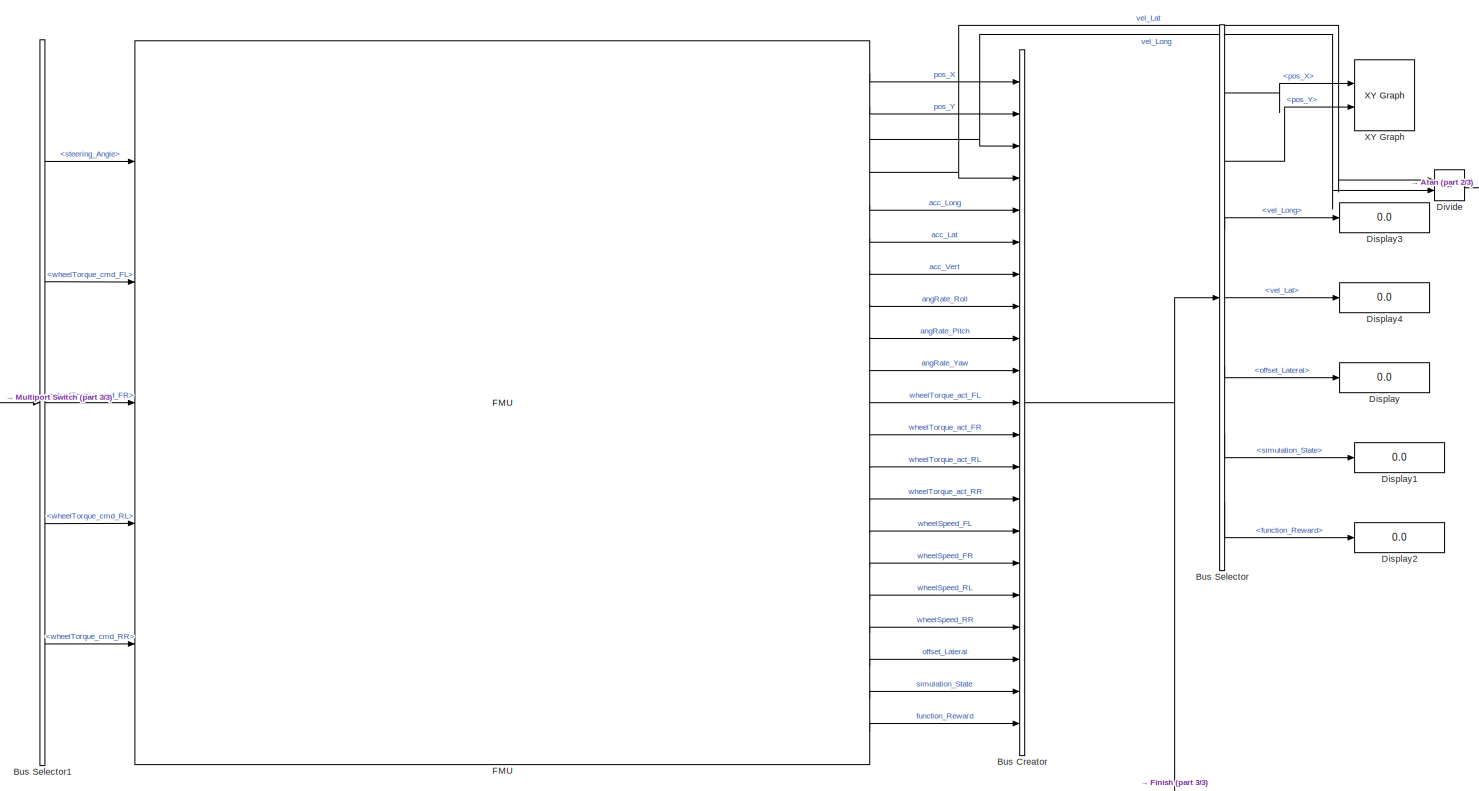
[diagram: root canvas - part 1/3, most of the canvas]
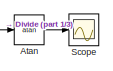
[diagram: root canvas - part 2/3, top right region]
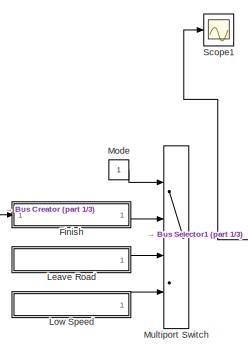
[diagram: root canvas - part 3/3, middle left region]
MODEL slx_ea563515ab96
KIND model
CONFIG AbsTol = auto
CONFIG EnableMultiTasking = off
CONFIG FixedStep = 0.01
CONFIG MaxStep = auto
CONFIG MinStep = auto
CONFIG RelTol = 1e-3
CONFIG SampleTimeConstraint = Unconstrained
CONFIG Solver = ode3
CONFIG SolverName = ode3
CONFIG StartTime = 0.0
CONFIG StopTime = 25
BLOCK [Trigonometry] Atan
  Operator = atan
  Ports = [1, 1]
BLOCK [BusCreator] Bus Creator
  DisplayOption = bar
  InheritFromInputs = on
  Inputs = 21
  Ports = [21, 1]
BLOCK [BusSelector] Bus Selector
  OutputAsBus = off
  OutputSignals = pos_X,pos_Y,vel_Long,vel_Lat,offset_Lateral,simulation_State,function_Reward
  Ports = [1, 7]
BLOCK [BusSelector] Bus Selector1
  OutputAsBus = off
  OutputSignals = steering_Angle,wheelTorque_cmd_FL,wheelTorque_cmd_FR,wheelTorque_cmd_RL,wheelTorque_cmd_RR
  Ports = [1, 5]
BLOCK [Display] Display
  Decimation = 1
  Ports = [1]
BLOCK [Display] Display1
  Decimation = 1
  Ports = [1]
BLOCK [Display] Display2
  Decimation = 1
  Ports = [1]
BLOCK [Display] Display3
  Decimation = 1
  Ports = [1]
BLOCK [Display] Display4
  Decimation = 1
  Ports = [1]
BLOCK [Product] Divide
  InputSameDT = off
  Inputs = */
  OutDataTypeStr = Inherit: Inherit via internal rule
  Ports = [2, 1]
  RndMeth = Floor
  SaturateOnIntegerOverflow = off
BLOCK [FMU] FMU
  FMUDebugLogging = on
  FMUMode = CoSimulation
  FMUName = MED2018_VehicleModel.fmu
  FMUSampleTime = -1
  MaskDisplay = if (exist([Simulink.fileGenControl('get','CacheFolder') '\slprj\_fmu\87fe7205f2c752a272fe911956c5d5a6\MED2018_VehicleModel\model.png'],'file'))\n    image([Simulink.fileGenControl('get','CacheFolder') '\slprj\_fmu\87fe7205f2c752a272fe911956c5d5a6\MED2018_VehicleModel\model.png']);\n    text(0.03, 0.97, 'MED2018.VehicleModel', 'horizontalAlignment', 'left', 'verticalAlignment', 'top');\nelse\n    disp(...<+1077ch>
  MaskPromptString = Communication StepsizeCommunication stepsize between FMU and Simulink
  MaskType = MED2018.VehicleModel [Co-Simulation, v2.0]
  Ports = [5, 21]
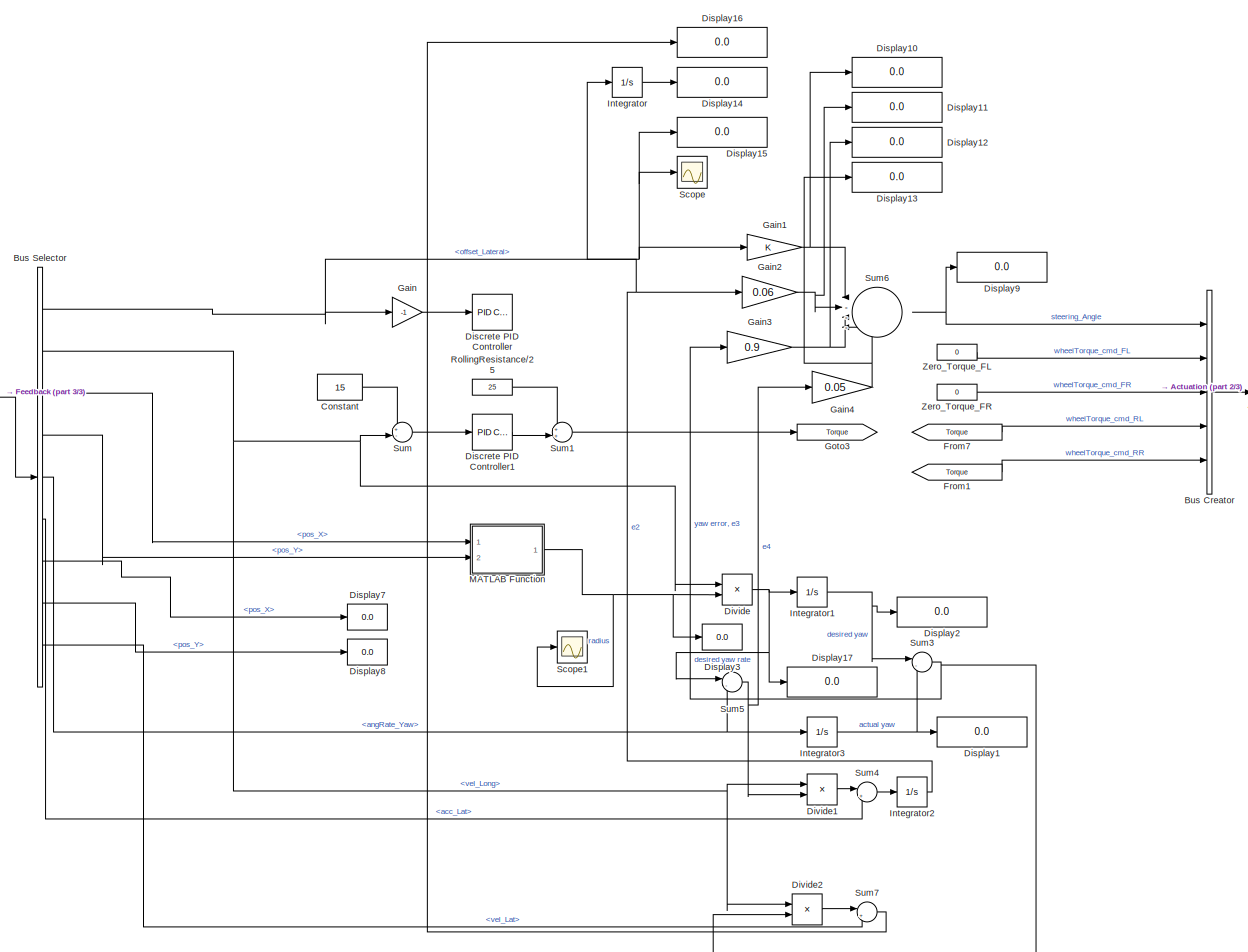
[diagram: Finish - part 1/3, most of the canvas]
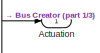
[diagram: Finish - part 2/3, middle right region]
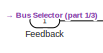
[diagram: Finish - part 3/3, middle left region]
BLOCK [SubSystem] Finish
  Ports = [1, 1]
  RequestExecContextInheritance = off
  Variant = off
BLOCK [Outport] Finish/Actuation
  IconDisplay = Port number
BLOCK [BusCreator] Finish/Bus Creator
  DisplayOption = bar
  InheritFromInputs = on
  Inputs = 5
  Ports = [5, 1]
BLOCK [BusSelector] Finish/Bus Selector
  OutputAsBus = off
  OutputSignals = offset_Lateral,vel_Long,pos_X,pos_Y,angRate_Yaw,acc_Lat,pos_X,pos_Y,vel_Lat
  Ports = [1, 9]
BLOCK [Constant] Finish/Constant
  Value = 15
BLOCK [Reference] Finish/Discrete PID Controller  REF=simulink/Continuous/PID Controller
  Ports = [1, 1]
  SourceBlock = simulink/Continuous/PID Controller
  SourceProductBaseCode = SL
  SourceProductName = Simulink
  SourceType = PID 1dof
BLOCK [Reference] Finish/Discrete PID Controller1  REF=simulink/Continuous/PID Controller
  Ports = [1, 1]
  SourceBlock = simulink/Continuous/PID Controller
  SourceProductBaseCode = SL
  SourceProductName = Simulink
  SourceType = PID 1dof
BLOCK [Display] Finish/Display1
  Decimation = 1
  Ports = [1]
BLOCK [Display] Finish/Display10
  Decimation = 1
  Ports = [1]
BLOCK [Display] Finish/Display11
  Decimation = 1
  Ports = [1]
BLOCK [Display] Finish/Display12
  Decimation = 1
  Ports = [1]
BLOCK [Display] Finish/Display13
  Decimation = 1
  Ports = [1]
BLOCK [Display] Finish/Display14
  Decimation = 1
  Ports = [1]
BLOCK [Display] Finish/Display15
  Decimation = 1
  Ports = [1]
BLOCK [Display] Finish/Display16
  Decimation = 1
  Ports = [1]
BLOCK [Display] Finish/Display17
  Decimation = 1
  Ports = [1]
BLOCK [Display] Finish/Display2
  Decimation = 1
  Ports = [1]
BLOCK [Display] Finish/Display3
  Decimation = 1
  Ports = [1]
BLOCK [Display] Finish/Display7
  Decimation = 1
  Ports = [1]
BLOCK [Display] Finish/Display8
  Decimation = 1
  Ports = [1]
BLOCK [Display] Finish/Display9
  Decimation = 1
  Ports = [1]
BLOCK [Product] Finish/Divide
  InputSameDT = off
  Inputs = */
  OutDataTypeStr = Inherit: Inherit via internal rule
  Ports = [2, 1]
  RndMeth = Floor
  SaturateOnIntegerOverflow = off
BLOCK [Product] Finish/Divide1
  InputSameDT = off
  Inputs = **
  OutDataTypeStr = Inherit: Inherit via internal rule
  Ports = [2, 1]
  RndMeth = Floor
  SaturateOnIntegerOverflow = off
BLOCK [Product] Finish/Divide2
  InputSameDT = off
  Inputs = **
  OutDataTypeStr = Inherit: Inherit via internal rule
  Ports = [2, 1]
  RndMeth = Floor
  SaturateOnIntegerOverflow = off
BLOCK [Inport] Finish/Feedback
  IconDisplay = Port number
BLOCK [From] Finish/From1
  GotoTag = Torque
BLOCK [From] Finish/From7
  GotoTag = Torque
BLOCK [Gain] Finish/Gain
  Gain = -1
  OutDataTypeStr = Inherit: Inherit via internal rule
  ParamDataTypeStr = Inherit: Inherit via internal rule
  SaturateOnIntegerOverflow = off
BLOCK [Gain] Finish/Gain1
  OutDataTypeStr = Inherit: Inherit via internal rule
  ParamDataTypeStr = Inherit: Inherit via internal rule
  SaturateOnIntegerOverflow = off
BLOCK [Gain] Finish/Gain2
  Gain = 0.06
  OutDataTypeStr = Inherit: Inherit via internal rule
  ParamDataTypeStr = Inherit: Inherit via internal rule
  SaturateOnIntegerOverflow = off
BLOCK [Gain] Finish/Gain3
  Gain = 0.9
  OutDataTypeStr = Inherit: Inherit via internal rule
  ParamDataTypeStr = Inherit: Inherit via internal rule
  SaturateOnIntegerOverflow = off
BLOCK [Gain] Finish/Gain4
  Gain = 0.05
  OutDataTypeStr = Inherit: Inherit via internal rule
  ParamDataTypeStr = Inherit: Inherit via internal rule
  SaturateOnIntegerOverflow = off
BLOCK [Goto] Finish/Goto3
  GotoTag = Torque
BLOCK [Integrator] Finish/Integrator
  Ports = [1, 1]
BLOCK [Integrator] Finish/Integrator1
  Ports = [1, 1]
BLOCK [Integrator] Finish/Integrator2
  Ports = [1, 1]
BLOCK [Integrator] Finish/Integrator3
  Ports = [1, 1]
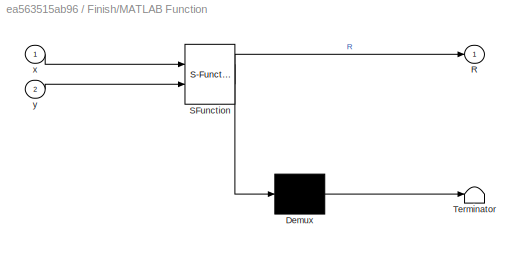
BLOCK [SubSystem] Finish/MATLAB Function
  ErrorFcn = Stateflow.Translate.translate
  PermitHierarchicalResolution = ExplicitOnly
  Ports = [2, 1]
  RequestExecContextInheritance = off
  SFBlockType = MATLAB Function
  TreatAsAtomicUnit = on
  Variant = off
BLOCK [Demux] Finish/MATLAB Function/ Demux 
  Outputs = 1
  Ports = [1, 1]
BLOCK [S-Function] Finish/MATLAB Function/ SFunction 
  EnableBusSupport = on
  FunctionName = sf_sfun
  PortCounts = [2 2]
  Ports = [2, 2]
  SFcnIsStateOwnerBlock = off
  SFunctionDeploymentMode = off
  Tag = Stateflow S-Function MED2018_VehicleModel_Final_Pero 2
BLOCK [Terminator] Finish/MATLAB Function/ Terminator 
BLOCK [Outport] Finish/MATLAB Function/R
  IconDisplay = Port number
BLOCK [Inport] Finish/MATLAB Function/x
  IconDisplay = Port number
BLOCK [Inport] Finish/MATLAB Function/y
  IconDisplay = Port number
  Port = 2
BLOCK [Constant] Finish/RollingResistance//25 
  Value = 25
BLOCK [Scope] Finish/Scope
  NumInputPorts = 1
  Ports = [1]
  ScopeSpecificationString = Simulink.scopes.TimeScopeBlockCfg('CurrentConfiguration', extmgr.ConfigurationSet(extmgr.Configuration('Core','General UI',true),extmgr.Configuration('Core','Source UI',true),extmgr.Configuration('Sources','WiredSimulink',true),extmgr.Configuration('Visuals','Time Domain',true,'SerializedDisplays',{struct('MinYLimReal','-4.48321','MaxYLimReal','5.44914','YLabelReal','','MinYLimMag','0.00000','MaxY...<+1514ch>
BLOCK [Scope] Finish/Scope1
  NumInputPorts = 1
  Ports = [1]
  ScopeSpecificationString = Simulink.scopes.TimeScopeBlockCfg('CurrentConfiguration', extmgr.ConfigurationSet(extmgr.Configuration('Core','General UI',true),extmgr.Configuration('Core','Source UI',true),extmgr.Configuration('Sources','WiredSimulink',true,'DataLoggingVariableName','ScopeData1'),extmgr.Configuration('Visuals','Time Domain',true,'SerializedDisplays',{struct('MinYLimReal','-9.06552','MaxYLimReal','16.40681','YLa...<+1559ch>
BLOCK [Sum] Finish/Sum
  IconShape = round
  InputSameDT = off
  Inputs = +-|
  OutDataTypeStr = Inherit: Inherit via internal rule
  Ports = [2, 1]
  SaturateOnIntegerOverflow = off
BLOCK [Sum] Finish/Sum1
  IconShape = round
  InputSameDT = off
  Inputs = ++|
  OutDataTypeStr = Inherit: Inherit via internal rule
  Ports = [2, 1]
  SaturateOnIntegerOverflow = off
BLOCK [Sum] Finish/Sum3
  IconShape = round
  InputSameDT = off
  Inputs = |-+
  OutDataTypeStr = Inherit: Inherit via internal rule
  Ports = [2, 1]
  SaturateOnIntegerOverflow = off
BLOCK [Sum] Finish/Sum4
  IconShape = round
  InputSameDT = off
  Inputs = |++
  OutDataTypeStr = Inherit: Inherit via internal rule
  Ports = [2, 1]
  SaturateOnIntegerOverflow = off
BLOCK [Sum] Finish/Sum5
  IconShape = round
  InputSameDT = off
  Inputs = |-+
  OutDataTypeStr = Inherit: Inherit via internal rule
  Ports = [2, 1]
  SaturateOnIntegerOverflow = off
BLOCK [Sum] Finish/Sum6
  IconShape = round
  InputSameDT = off
  Inputs = |----
  OutDataTypeStr = Inherit: Inherit via internal rule
  Ports = [4, 1]
  SaturateOnIntegerOverflow = off
BLOCK [Sum] Finish/Sum7
  IconShape = round
  InputSameDT = off
  Inputs = |++
  OutDataTypeStr = Inherit: Inherit via internal rule
  Ports = [2, 1]
  SaturateOnIntegerOverflow = off
BLOCK [Constant] Finish/Zero_Torque_FL
  Value = 0
BLOCK [Constant] Finish/Zero_Torque_FR
  Value = 0
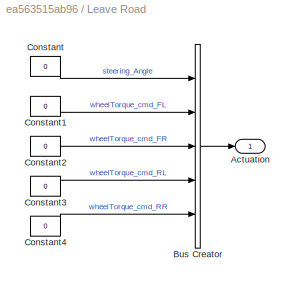
BLOCK [SubSystem] Leave Road
  Ports = [0, 1]
  RequestExecContextInheritance = off
  Variant = off
BLOCK [Outport] Leave Road/Actuation
  IconDisplay = Port number
BLOCK [BusCreator] Leave Road/Bus Creator
  DisplayOption = bar
  InheritFromInputs = on
  Inputs = 5
  Ports = [5, 1]
BLOCK [Constant] Leave Road/Constant
  Value = 0
BLOCK [Constant] Leave Road/Constant1
  Value = 0
BLOCK [Constant] Leave Road/Constant2
  Value = 0
BLOCK [Constant] Leave Road/Constant3
  Value = 0
BLOCK [Constant] Leave Road/Constant4
  Value = 0
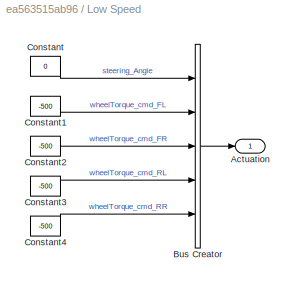
BLOCK [SubSystem] Low Speed
  Ports = [0, 1]
  RequestExecContextInheritance = off
  Variant = off
BLOCK [Outport] Low Speed/Actuation
  IconDisplay = Port number
BLOCK [BusCreator] Low Speed/Bus Creator
  DisplayOption = bar
  InheritFromInputs = on
  Inputs = 5
  Ports = [5, 1]
BLOCK [Constant] Low Speed/Constant
  Value = 0
BLOCK [Constant] Low Speed/Constant1
  Value = -500
BLOCK [Constant] Low Speed/Constant2
  Value = -500
BLOCK [Constant] Low Speed/Constant3
  Value = -500
BLOCK [Constant] Low Speed/Constant4
  Value = -500
BLOCK [Constant] Mode
BLOCK [MultiPortSwitch] Multiport Switch
  InputSameDT = off
  Ports = [4, 1]
  SaturateOnIntegerOverflow = off
BLOCK [Scope] Scope
  NumInputPorts = 1
  Ports = [1]
  ScopeSpecificationString = Simulink.scopes.TimeScopeBlockCfg('CurrentConfiguration', extmgr.ConfigurationSet(extmgr.Configuration('Core','General UI',true),extmgr.Configuration('Core','Source UI',true),extmgr.Configuration('Sources','WiredSimulink',true,'DataLoggingVariableName','ScopeData1'),extmgr.Configuration('Visuals','Time Domain',true,'SerializedDisplays',{struct('MinYLimReal','-0.05363','MaxYLimReal','0.04629','YLab...<+1477ch>
BLOCK [Scope] Scope1
  NumInputPorts = 1
  Ports = [1]
  ScopeSpecificationString = Simulink.scopes.TimeScopeBlockCfg('CurrentConfiguration', extmgr.ConfigurationSet(extmgr.Configuration('Core','General UI',true),extmgr.Configuration('Core','Source UI',true),extmgr.Configuration('Sources','WiredSimulink',true,'DataLoggingVariableName','ScopeData2'),extmgr.Configuration('Visuals','Time Domain',true,'SerializedDisplays',{struct('MinYLimReal','-214.22559','MaxYLimReal','325.15115','...<+1887ch>
BLOCK [Reference] XY Graph  REF=simulink/Sinks/XY Graph
  Ports = [2]
  SourceBlock = simulink/Sinks/XY Graph
  SourceProductBaseCode = SL
  SourceProductName = Simulink
  SourceType = XY scope.
LINE Atan:1 -> Scope:1
NET Bus Creator:1 -> Bus Selector:1, Finish:1
LINE Bus Selector1:1 -> FMU:1
LINE Bus Selector1:2 -> FMU:2
LINE Bus Selector1:3 -> FMU:3
LINE Bus Selector1:4 -> FMU:4
LINE Bus Selector1:5 -> FMU:5
LINE Bus Selector:1 -> XY Graph:1
LINE Bus Selector:2 -> XY Graph:2
LINE Bus Selector:3 -> Display3:1
LINE Bus Selector:4 -> Display4:1
LINE Bus Selector:5 -> Display:1
LINE Bus Selector:6 -> Display1:1
LINE Bus Selector:7 -> Display2:1
LINE Divide:1 -> Atan:1
LINE FMU:1 -> Bus Creator:1
LINE FMU:10 -> Bus Creator:10
LINE FMU:11 -> Bus Creator:11
LINE FMU:12 -> Bus Creator:12
LINE FMU:13 -> Bus Creator:13
LINE FMU:14 -> Bus Creator:14
LINE FMU:15 -> Bus Creator:15
LINE FMU:16 -> Bus Creator:16
LINE FMU:17 -> Bus Creator:17
LINE FMU:18 -> Bus Creator:18
LINE FMU:19 -> Bus Creator:19
LINE FMU:2 -> Bus Creator:2
LINE FMU:20 -> Bus Creator:20
LINE FMU:21 -> Bus Creator:21
NET FMU:3 -> Bus Creator:3, Divide:2
NET FMU:4 -> Bus Creator:4, Divide:1
LINE FMU:5 -> Bus Creator:5
LINE FMU:6 -> Bus Creator:6
LINE FMU:7 -> Bus Creator:7
LINE FMU:8 -> Bus Creator:8
LINE FMU:9 -> Bus Creator:9
LINE Finish/Bus Creator:1 -> Finish/Actuation:1
NET Finish/Bus Selector:1 -> Finish/Display15:1, Finish/Gain1:1, Finish/Gain:1, Finish/Scope:1
NET Finish/Bus Selector:2 -> Finish/Divide1:1, Finish/Divide2:1, Finish/Divide:1, Finish/Sum:2
LINE Finish/Bus Selector:3 -> Finish/MATLAB Function:1
LINE Finish/Bus Selector:4 -> Finish/MATLAB Function:2
NET Finish/Bus Selector:5 -> Finish/Integrator3:1, Finish/Sum5:2
LINE Finish/Bus Selector:6 -> Finish/Sum4:2
LINE Finish/Bus Selector:7 -> Finish/Display7:1
LINE Finish/Bus Selector:8 -> Finish/Display8:1
LINE Finish/Bus Selector:9 -> Finish/Sum7:2
LINE Finish/Constant:1 -> Finish/Sum:1
LINE Finish/Discrete PID Controller1:1 -> Finish/Sum1:2
LINE Finish/Divide1:1 -> Finish/Sum4:1
LINE Finish/Divide2:1 -> Finish/Sum7:1
NET Finish/Divide:1 -> Finish/Display17:1, Finish/Integrator1:1, Finish/Sum5:1
LINE Finish/Feedback:1 -> Finish/Bus Selector:1
LINE Finish/From1:1 -> Finish/Bus Creator:5
LINE Finish/From7:1 -> Finish/Bus Creator:4
NET Finish/Gain1:1 -> Finish/Display10:1, Finish/Sum6:1
NET Finish/Gain2:1 -> Finish/Display11:1, Finish/Sum6:2
NET Finish/Gain3:1 -> Finish/Display12:1, Finish/Sum6:3
NET Finish/Gain4:1 -> Finish/Display13:1, Finish/Sum6:4
LINE Finish/Gain:1 -> Finish/Discrete PID Controller:1
NET Finish/Integrator1:1 -> Finish/Display2:1, Finish/Sum3:1
NET Finish/Integrator2:1 -> Finish/Gain2:1, Finish/Integrator:1
NET Finish/Integrator3:1 -> Finish/Display1:1, Finish/Sum3:2
LINE Finish/Integrator:1 -> Finish/Display14:1
NET Finish/MATLAB Function:1 -> Finish/Display3:1, Finish/Divide:2, Finish/Scope1:1
LINE Finish/RollingResistance//25 :1 -> Finish/Sum1:1
LINE Finish/Sum1:1 -> Finish/Goto3:1
NET Finish/Sum3:1 -> Finish/Divide2:2, Finish/Gain3:1
LINE Finish/Sum4:1 -> Finish/Integrator2:1
NET Finish/Sum5:1 -> Finish/Divide1:2, Finish/Gain4:1
NET Finish/Sum6:1 -> Finish/Bus Creator:1, Finish/Display9:1
LINE Finish/Sum7:1 -> Finish/Display16:1
LINE Finish/Sum:1 -> Finish/Discrete PID Controller1:1
LINE Finish/Zero_Torque_FL:1 -> Finish/Bus Creator:2
LINE Finish/Zero_Torque_FR:1 -> Finish/Bus Creator:3
LINE Finish:1 -> Multiport Switch:2
LINE Leave Road/Bus Creator:1 -> Leave Road/Actuation:1
LINE Leave Road/Constant1:1 -> Leave Road/Bus Creator:2
LINE Leave Road/Constant2:1 -> Leave Road/Bus Creator:3
LINE Leave Road/Constant3:1 -> Leave Road/Bus Creator:4
LINE Leave Road/Constant4:1 -> Leave Road/Bus Creator:5
LINE Leave Road/Constant:1 -> Leave Road/Bus Creator:1
LINE Leave Road:1 -> Multiport Switch:3
LINE Low Speed/Bus Creator:1 -> Low Speed/Actuation:1
LINE Low Speed/Constant1:1 -> Low Speed/Bus Creator:2
LINE Low Speed/Constant2:1 -> Low Speed/Bus Creator:3
LINE Low Speed/Constant3:1 -> Low Speed/Bus Creator:4
LINE Low Speed/Constant4:1 -> Low Speed/Bus Creator:5
LINE Low Speed/Constant:1 -> Low Speed/Bus Creator:1
LINE Low Speed:1 -> Multiport Switch:4
LINE Mode:1 -> Multiport Switch:1
NET Multiport Switch:1 -> Bus Selector1:1, Scope1:1
note: NET lines group one-source signal fan-out (src -> all destinations, sorted); 1:1 wires keep LINE
CHART Finish/MATLAB Function states=1 transitions=1
  STATE_LABEL 'eML_blk_kernel()'
  STATE_LABEL 'SCRIPT:\nfunction R = fcn(x,y)\n\nif ((x>=45)&&(x<105)&&(y<45)&&(y > -5))\n    R=50;\nelseif ((x>=55)&&(x<105)&&(y>=45)&&(y<105))\n    R=50;\nelseif ((x<55)&&(x>15)&&(y>=95)&&(y<130))\n    R=-35;\n \nelseif ((x<45)&&(x>15)&&(y>=130)&&(y<170))\n    R=-35;\nelse \n    R=inf;\nend\n'
